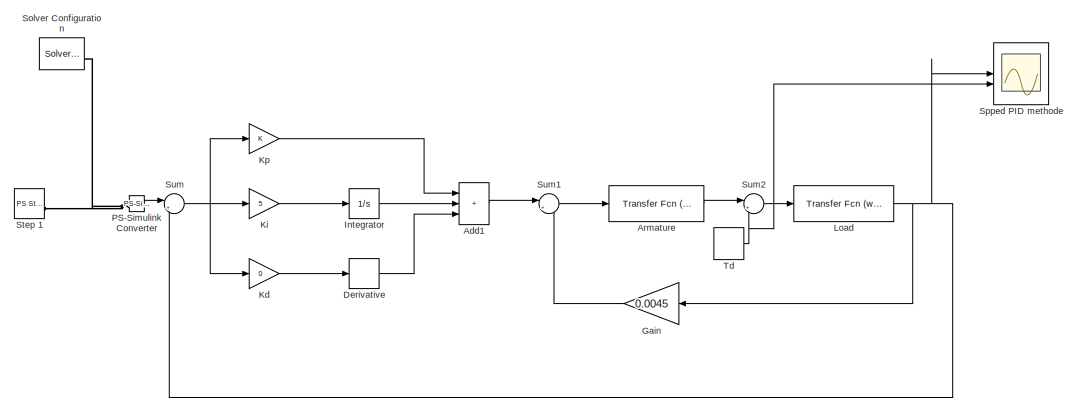
[diagram: root canvas - part 1/6, full width, top band]
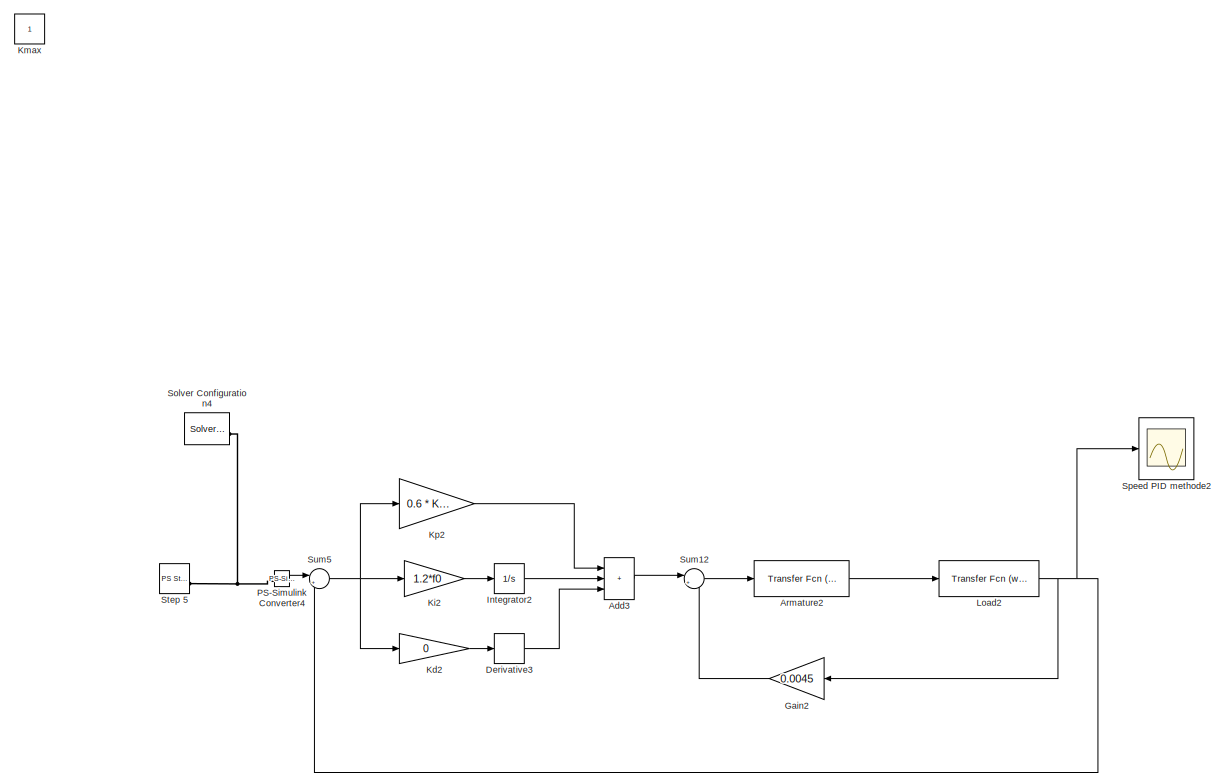
[diagram: root canvas - part 2/6, full width, top band]
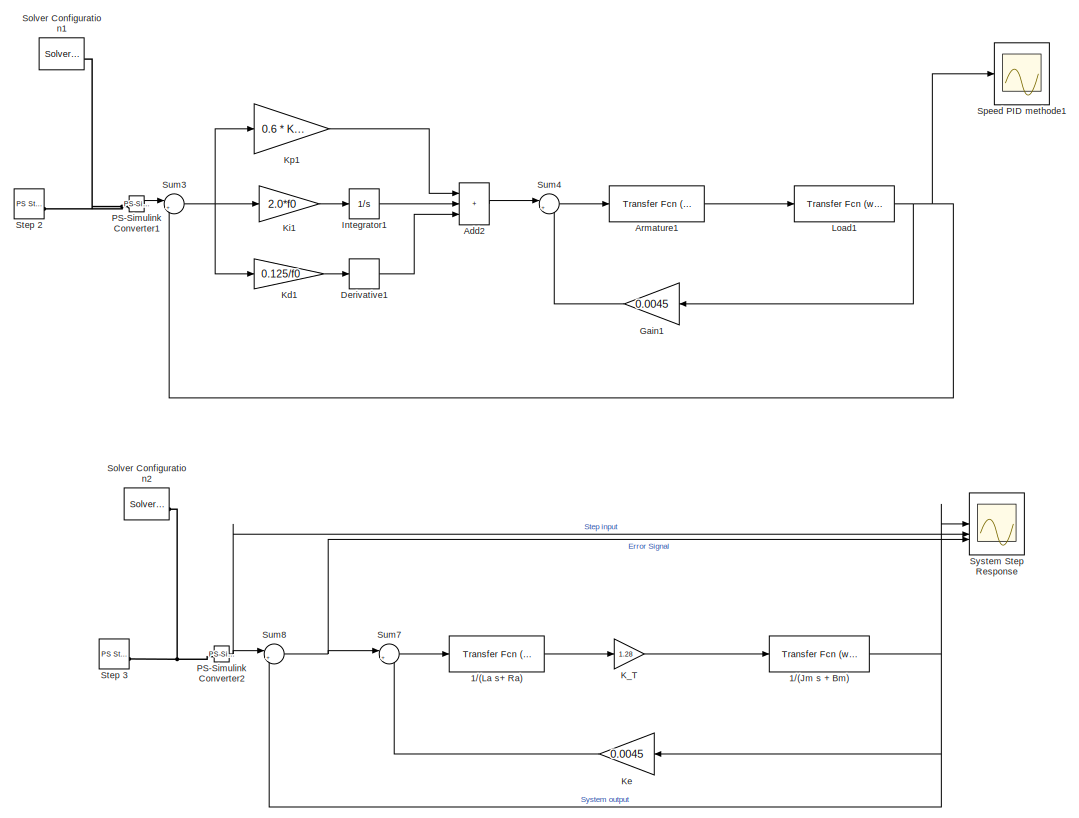
[diagram: root canvas - part 3/6, full width, middle band]
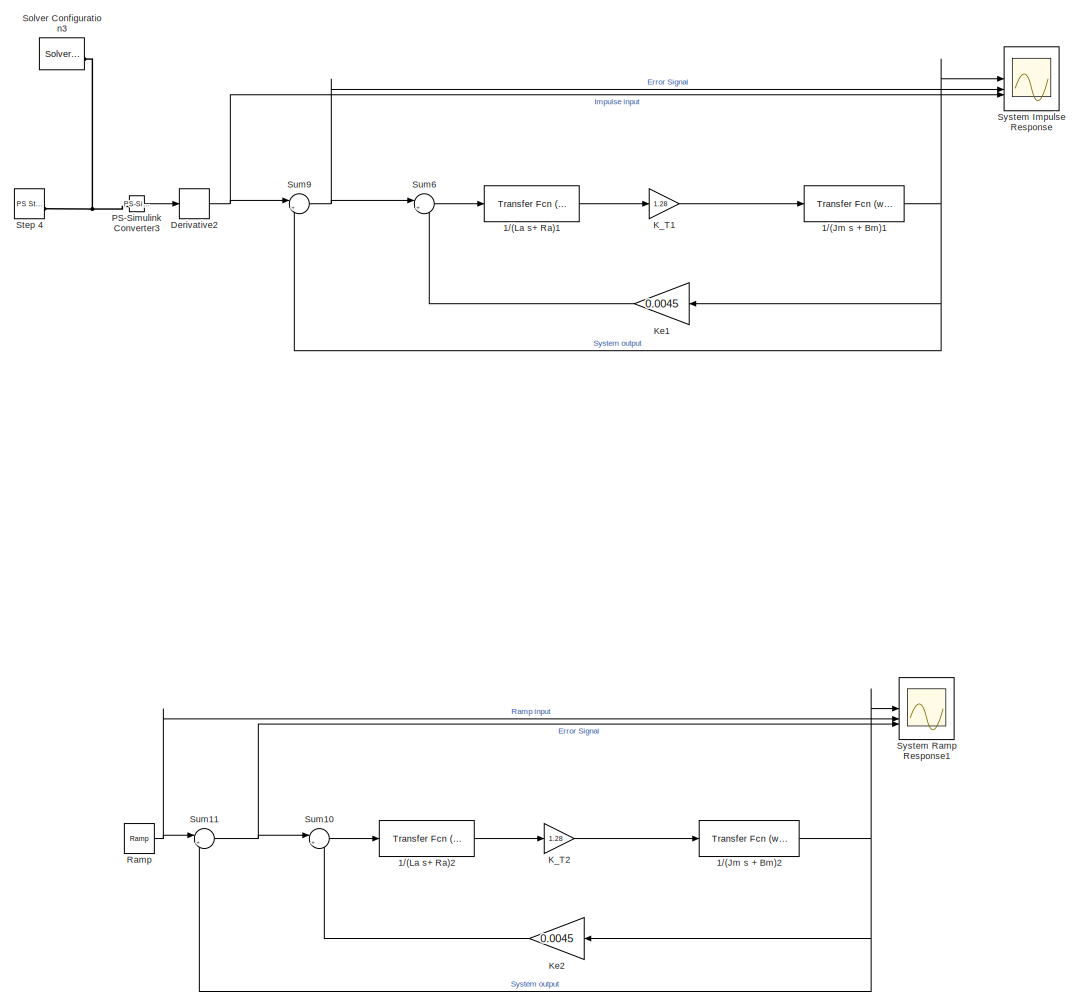
[diagram: root canvas - part 4/6, full width, middle band]
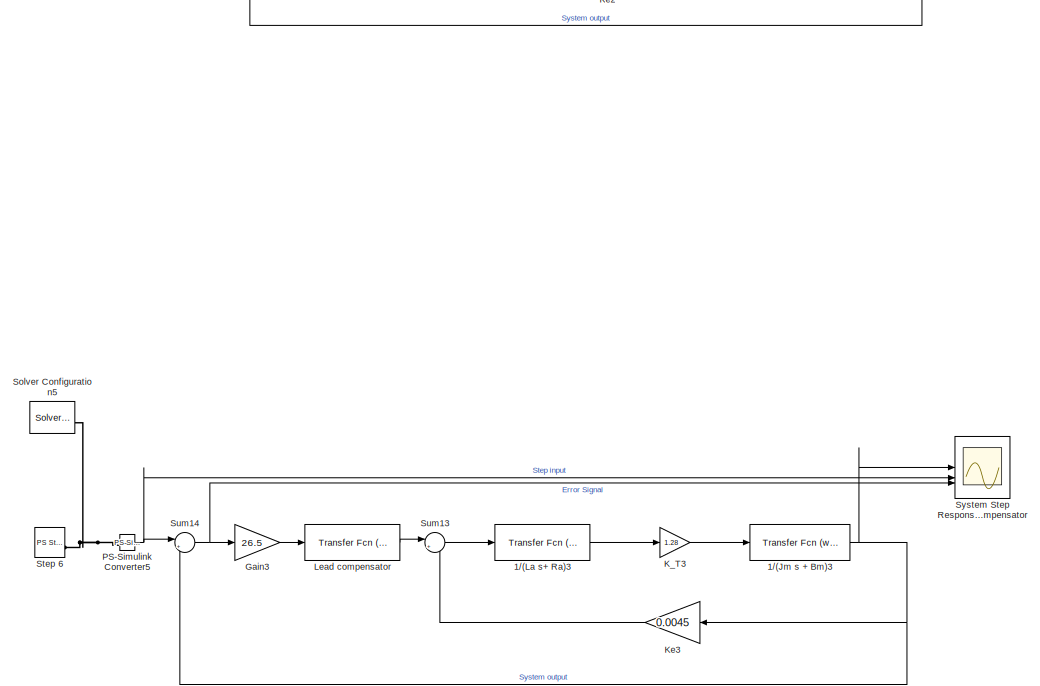
[diagram: root canvas - part 5/6, full width, bottom band]
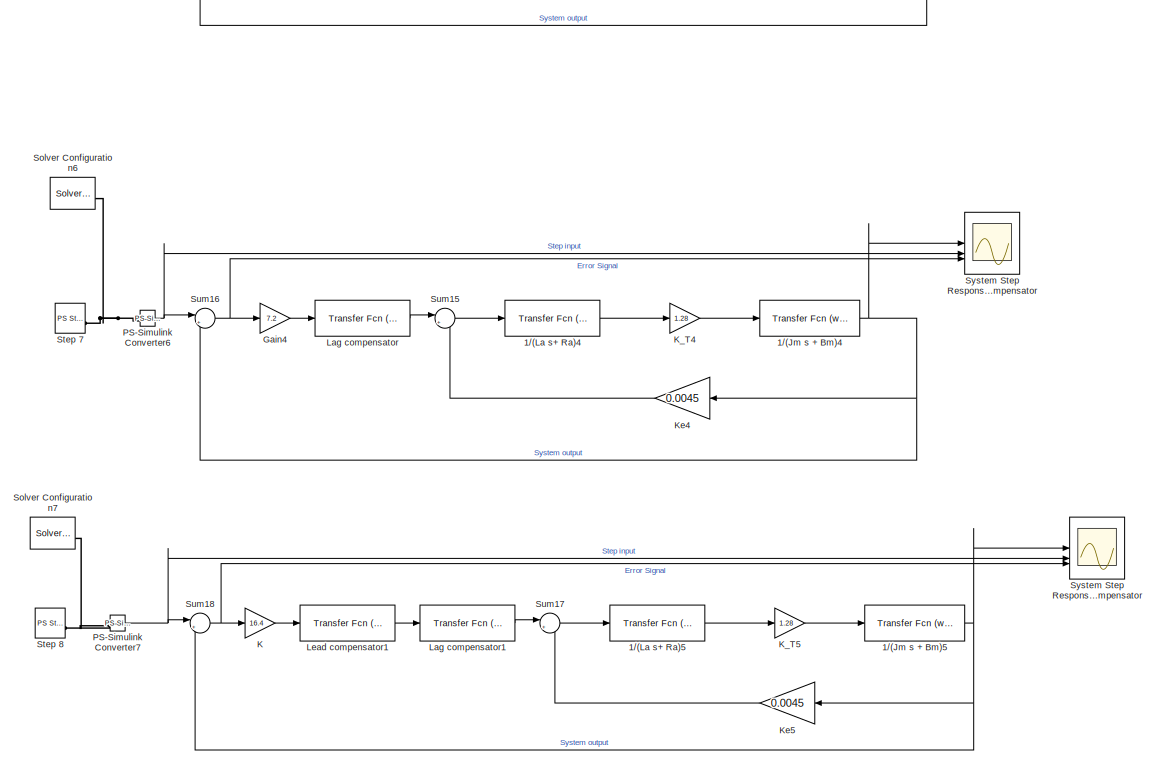
[diagram: root canvas - part 6/6, full width, bottom band]
MODEL slx_feaa740e583f
KIND model
CONFIG AbsTol = auto
CONFIG EnableMultiTasking = off
CONFIG FixedStep = auto
CONFIG MaxStep = auto
CONFIG MinStep = auto
CONFIG RelTol = 1e-3
CONFIG SampleTimeConstraint = Unconstrained
CONFIG SolverName = VariableStepAuto
CONFIG StartTime = 0.0
CONFIG StopTime = 10
WORKSPACE source: mxarray member
WORKSPACE Kmax = 100
BLOCK [Reference] 1//(Jm s + Bm)  REF=simulink_extras/Additional
Linear/Transfer Fcn
(with initial states)
  SourceBlock = simulink_extras/Additional\nLinear/Transfer Fcn\n(with initial states)
  SourceType = Transfer Function with Initial States
BLOCK [Reference] 1//(Jm s + Bm)1  REF=simulink_extras/Additional
Linear/Transfer Fcn
(with initial states)
  SourceBlock = simulink_extras/Additional\nLinear/Transfer Fcn\n(with initial states)
  SourceType = Transfer Function with Initial States
BLOCK [Reference] 1//(Jm s + Bm)2  REF=simulink_extras/Additional
Linear/Transfer Fcn
(with initial states)
  SourceBlock = simulink_extras/Additional\nLinear/Transfer Fcn\n(with initial states)
  SourceType = Transfer Function with Initial States
BLOCK [Reference] 1//(Jm s + Bm)3  REF=simulink_extras/Additional
Linear/Transfer Fcn
(with initial states)
  SourceBlock = simulink_extras/Additional\nLinear/Transfer Fcn\n(with initial states)
  SourceType = Transfer Function with Initial States
BLOCK [Reference] 1//(Jm s + Bm)4  REF=simulink_extras/Additional
Linear/Transfer Fcn
(with initial states)
  SourceBlock = simulink_extras/Additional\nLinear/Transfer Fcn\n(with initial states)
  SourceType = Transfer Function with Initial States
BLOCK [Reference] 1//(Jm s + Bm)5  REF=simulink_extras/Additional
Linear/Transfer Fcn
(with initial states)
  SourceBlock = simulink_extras/Additional\nLinear/Transfer Fcn\n(with initial states)
  SourceType = Transfer Function with Initial States
BLOCK [Reference] 1//(La s+ Ra)  REF=simulink_extras/Additional
Linear/Transfer Fcn
(with initial states)
  SourceBlock = simulink_extras/Additional\nLinear/Transfer Fcn\n(with initial states)
  SourceType = Transfer Function with Initial States
BLOCK [Reference] 1//(La s+ Ra)1  REF=simulink_extras/Additional
Linear/Transfer Fcn
(with initial states)
  SourceBlock = simulink_extras/Additional\nLinear/Transfer Fcn\n(with initial states)
  SourceType = Transfer Function with Initial States
BLOCK [Reference] 1//(La s+ Ra)2  REF=simulink_extras/Additional
Linear/Transfer Fcn
(with initial states)
  SourceBlock = simulink_extras/Additional\nLinear/Transfer Fcn\n(with initial states)
  SourceType = Transfer Function with Initial States
BLOCK [Reference] 1//(La s+ Ra)3  REF=simulink_extras/Additional
Linear/Transfer Fcn
(with initial states)
  SourceBlock = simulink_extras/Additional\nLinear/Transfer Fcn\n(with initial states)
  SourceType = Transfer Function with Initial States
BLOCK [Reference] 1//(La s+ Ra)4  REF=simulink_extras/Additional
Linear/Transfer Fcn
(with initial states)
  SourceBlock = simulink_extras/Additional\nLinear/Transfer Fcn\n(with initial states)
  SourceType = Transfer Function with Initial States
BLOCK [Reference] 1//(La s+ Ra)5  REF=simulink_extras/Additional
Linear/Transfer Fcn
(with initial states)
  SourceBlock = simulink_extras/Additional\nLinear/Transfer Fcn\n(with initial states)
  SourceType = Transfer Function with Initial States
BLOCK [Sum] Add1
  IconShape = rectangular
  Inputs = +++
BLOCK [Sum] Add2
  IconShape = rectangular
  Inputs = +++
BLOCK [Sum] Add3
  IconShape = rectangular
  Inputs = +++
BLOCK [Reference] Armature  REF=simulink_extras/Additional
Linear/Transfer Fcn
(with initial states)
  SourceBlock = simulink_extras/Additional\nLinear/Transfer Fcn\n(with initial states)
  SourceType = Transfer Function with Initial States
BLOCK [Reference] Armature1  REF=simulink_extras/Additional
Linear/Transfer Fcn
(with initial states)
  SourceBlock = simulink_extras/Additional\nLinear/Transfer Fcn\n(with initial states)
  SourceType = Transfer Function with Initial States
BLOCK [Reference] Armature2  REF=simulink_extras/Additional
Linear/Transfer Fcn
(with initial states)
  SourceBlock = simulink_extras/Additional\nLinear/Transfer Fcn\n(with initial states)
  SourceType = Transfer Function with Initial States
BLOCK [Derivative] Derivative
BLOCK [Derivative] Derivative1
BLOCK [Derivative] Derivative2
BLOCK [Derivative] Derivative3
BLOCK [Gain] Gain
  Gain = 0.0045
  NameLocation = top
BLOCK [Gain] Gain1
  Gain = 0.0045
  NameLocation = top
BLOCK [Gain] Gain2
  Gain = 0.0045
  NameLocation = top
BLOCK [Gain] Gain3
  Gain = 26.5
BLOCK [Gain] Gain4
  Gain = 7.2
BLOCK [Integrator] Integrator
BLOCK [Integrator] Integrator1
BLOCK [Integrator] Integrator2
BLOCK [Gain] K
  Gain = 16.4
BLOCK [Gain] K_T
  Gain = 1.28
BLOCK [Gain] K_T1
  Gain = 1.28
BLOCK [Gain] K_T2
  Gain = 1.28
BLOCK [Gain] K_T3
  Gain = 1.28
BLOCK [Gain] K_T4
  Gain = 1.28
BLOCK [Gain] K_T5
  Gain = 1.28
BLOCK [Gain] Kd
  Gain = 0
BLOCK [Gain] Kd1
  Gain = 0.125/f0
BLOCK [Gain] Kd2
  Gain = 0
BLOCK [Gain] Ke
  Gain = 0.0045
  NameLocation = top
BLOCK [Gain] Ke1
  Gain = 0.0045
  NameLocation = top
BLOCK [Gain] Ke2
  Gain = 0.0045
  NameLocation = top
BLOCK [Gain] Ke3
  Gain = 0.0045
  NameLocation = top
BLOCK [Gain] Ke4
  Gain = 0.0045
  NameLocation = top
BLOCK [Gain] Ke5
  Gain = 0.0045
  NameLocation = top
BLOCK [Gain] Ki
  Gain = 5
BLOCK [Gain] Ki1
  Gain = 2.0*f0
BLOCK [Gain] Ki2
  Gain = 1.2*f0
BLOCK [Constant] Kmax
BLOCK [Gain] Kp
BLOCK [Gain] Kp1
  Gain = 0.6 * Kmax
BLOCK [Gain] Kp2
  Gain = 0.6 * Kmax
BLOCK [Reference] Lag compensator  REF=simulink_extras/Additional
Linear/Transfer Fcn
(with initial states)
  SourceBlock = simulink_extras/Additional\nLinear/Transfer Fcn\n(with initial states)
  SourceType = Transfer Function with Initial States
BLOCK [Reference] Lag compensator1  REF=simulink_extras/Additional
Linear/Transfer Fcn
(with initial states)
  SourceBlock = simulink_extras/Additional\nLinear/Transfer Fcn\n(with initial states)
  SourceType = Transfer Function with Initial States
BLOCK [Reference] Lead compensator  REF=simulink_extras/Additional
Linear/Transfer Fcn
(with initial states)
  SourceBlock = simulink_extras/Additional\nLinear/Transfer Fcn\n(with initial states)
  SourceType = Transfer Function with Initial States
BLOCK [Reference] Lead compensator1  REF=simulink_extras/Additional
Linear/Transfer Fcn
(with initial states)
  SourceBlock = simulink_extras/Additional\nLinear/Transfer Fcn\n(with initial states)
  SourceType = Transfer Function with Initial States
BLOCK [Reference] Load  REF=simulink_extras/Additional
Linear/Transfer Fcn
(with initial states)
  SourceBlock = simulink_extras/Additional\nLinear/Transfer Fcn\n(with initial states)
  SourceType = Transfer Function with Initial States
BLOCK [Reference] Load1  REF=simulink_extras/Additional
Linear/Transfer Fcn
(with initial states)
  SourceBlock = simulink_extras/Additional\nLinear/Transfer Fcn\n(with initial states)
  SourceType = Transfer Function with Initial States
BLOCK [Reference] Load2  REF=simulink_extras/Additional
Linear/Transfer Fcn
(with initial states)
  SourceBlock = simulink_extras/Additional\nLinear/Transfer Fcn\n(with initial states)
  SourceType = Transfer Function with Initial States
BLOCK [Reference] PS-Simulink Converter  REF=nesl_utility/PS-Simulink
Converter
  SourceBlock = nesl_utility/PS-Simulink\nConverter
  SourceType = PS-Simulink\nConverter
BLOCK [Reference] PS-Simulink Converter1  REF=nesl_utility/PS-Simulink
Converter
  SourceBlock = nesl_utility/PS-Simulink\nConverter
  SourceType = PS-Simulink\nConverter
BLOCK [Reference] PS-Simulink Converter2  REF=nesl_utility/PS-Simulink
Converter
  SourceBlock = nesl_utility/PS-Simulink\nConverter
  SourceType = PS-Simulink\nConverter
BLOCK [Reference] PS-Simulink Converter3  REF=nesl_utility/PS-Simulink
Converter
  SourceBlock = nesl_utility/PS-Simulink\nConverter
  SourceType = PS-Simulink\nConverter
BLOCK [Reference] PS-Simulink Converter4  REF=nesl_utility/PS-Simulink
Converter
  SourceBlock = nesl_utility/PS-Simulink\nConverter
  SourceType = PS-Simulink\nConverter
BLOCK [Reference] PS-Simulink Converter5  REF=nesl_utility/PS-Simulink
Converter
  SourceBlock = nesl_utility/PS-Simulink\nConverter
  SourceType = PS-Simulink\nConverter
BLOCK [Reference] PS-Simulink Converter6  REF=nesl_utility/PS-Simulink
Converter
  SourceBlock = nesl_utility/PS-Simulink\nConverter
  SourceType = PS-Simulink\nConverter
BLOCK [Reference] PS-Simulink Converter7  REF=nesl_utility/PS-Simulink
Converter
  SourceBlock = nesl_utility/PS-Simulink\nConverter
  SourceType = PS-Simulink\nConverter
BLOCK [Reference] Ramp  REF=simulink/Sources/Ramp
  SourceBlock = simulink/Sources/Ramp
  SourceType = Ramp
BLOCK [Reference] Solver Configuration  REF=nesl_utility/Solver
Configuration
  SourceBlock = nesl_utility/Solver\nConfiguration
  SourceType = Solver\nConfiguration
BLOCK [Reference] Solver Configuration1  REF=nesl_utility/Solver
Configuration
  SourceBlock = nesl_utility/Solver\nConfiguration
  SourceType = Solver\nConfiguration
BLOCK [Reference] Solver Configuration2  REF=nesl_utility/Solver
Configuration
  SourceBlock = nesl_utility/Solver\nConfiguration
  SourceType = Solver\nConfiguration
BLOCK [Reference] Solver Configuration3  REF=nesl_utility/Solver
Configuration
  SourceBlock = nesl_utility/Solver\nConfiguration
  SourceType = Solver\nConfiguration
BLOCK [Reference] Solver Configuration4  REF=nesl_utility/Solver
Configuration
  SourceBlock = nesl_utility/Solver\nConfiguration
  SourceType = Solver\nConfiguration
BLOCK [Reference] Solver Configuration5  REF=nesl_utility/Solver
Configuration
  SourceBlock = nesl_utility/Solver\nConfiguration
  SourceType = Solver\nConfiguration
BLOCK [Reference] Solver Configuration6  REF=nesl_utility/Solver
Configuration
  SourceBlock = nesl_utility/Solver\nConfiguration
  SourceType = Solver\nConfiguration
BLOCK [Reference] Solver Configuration7  REF=nesl_utility/Solver
Configuration
  SourceBlock = nesl_utility/Solver\nConfiguration
  SourceType = Solver\nConfiguration
BLOCK [Scope] Speed PID methode1
  Floating = off
  NumInputPorts = 1
  ScopeSpecificationString = Simulink.scopes.TimeScopeBlockCfg('CurrentConfiguration', extmgr.ConfigurationSet(extmgr.Configuration('Core','General UI',true,'FigureColor',[1 1 1]),extmgr.Configuration('Core','Source UI',true),extmgr.Configuration('Sources','WiredSimulink',true,'DataLoggingVariableName','ScopeData1'),extmgr.Configuration('Visuals','Time Domain',true,'SerializedDisplays',{struct('MinYLimReal','-0.16218','MaxYLi...<+1527ch>
BLOCK [Scope] Speed PID methode2
  Floating = off
  NumInputPorts = 1
  ScopeSpecificationString = Simulink.scopes.TimeScopeBlockCfg('CurrentConfiguration', extmgr.ConfigurationSet(extmgr.Configuration('Core','General UI',true,'FigureColor',[1 1 1]),extmgr.Configuration('Core','Source UI',true),extmgr.Configuration('Sources','WiredSimulink',true,'DataLoggingVariableName','ScopeData4'),extmgr.Configuration('Visuals','Time Domain',true,'SerializedDisplays',{struct('MinYLimReal','0.63536','MaxYLim...<+1528ch>
BLOCK [Scope] Spped PID methode
  Floating = off
  NumInputPorts = 2
  ScopeSpecificationString = Simulink.scopes.TimeScopeBlockCfg('CurrentConfiguration', extmgr.ConfigurationSet(extmgr.Configuration('Core','General UI',true),extmgr.Configuration('Core','Source UI',true),extmgr.Configuration('Sources','WiredSimulink',true),extmgr.Configuration('Visuals','Time Domain',true,'SerializedDisplays',{struct('MinYLimReal','-0.16291','MaxYLimReal','1.46618','YLabelReal','','MinYLimMag','0.00000','MaxY...<+1447ch>
BLOCK [Reference] Step 1  REF=fl_lib/Physical Signals/Sources/PS Step
  SourceBlock = fl_lib/Physical Signals/Sources/PS Step
  SourceType = PS Step
BLOCK [Reference] Step 2  REF=fl_lib/Physical Signals/Sources/PS Step
  SourceBlock = fl_lib/Physical Signals/Sources/PS Step
  SourceType = PS Step
BLOCK [Reference] Step 3  REF=fl_lib/Physical Signals/Sources/PS Step
  SourceBlock = fl_lib/Physical Signals/Sources/PS Step
  SourceType = PS Step
BLOCK [Reference] Step 4  REF=fl_lib/Physical Signals/Sources/PS Step
  SourceBlock = fl_lib/Physical Signals/Sources/PS Step
  SourceType = PS Step
BLOCK [Reference] Step 5  REF=fl_lib/Physical Signals/Sources/PS Step
  SourceBlock = fl_lib/Physical Signals/Sources/PS Step
  SourceType = PS Step
BLOCK [Reference] Step 6  REF=fl_lib/Physical Signals/Sources/PS Step
  SourceBlock = fl_lib/Physical Signals/Sources/PS Step
  SourceType = PS Step
BLOCK [Reference] Step 7  REF=fl_lib/Physical Signals/Sources/PS Step
  SourceBlock = fl_lib/Physical Signals/Sources/PS Step
  SourceType = PS Step
BLOCK [Reference] Step 8  REF=fl_lib/Physical Signals/Sources/PS Step
  SourceBlock = fl_lib/Physical Signals/Sources/PS Step
  SourceType = PS Step
BLOCK [Sum] Sum
  Inputs = |+-
BLOCK [Sum] Sum1
  Inputs = |+-
BLOCK [Sum] Sum10
  Inputs = |+-
BLOCK [Sum] Sum11
  Inputs = |+-
BLOCK [Sum] Sum12
  Inputs = |+-
BLOCK [Sum] Sum13
  Inputs = |+-
BLOCK [Sum] Sum14
  Inputs = |+-
BLOCK [Sum] Sum15
  Inputs = |+-
BLOCK [Sum] Sum16
  Inputs = |+-
BLOCK [Sum] Sum17
  Inputs = |+-
BLOCK [Sum] Sum18
  Inputs = |+-
BLOCK [Sum] Sum2
  Inputs = |+-
BLOCK [Sum] Sum3
  Inputs = |+-
BLOCK [Sum] Sum4
  Inputs = |+-
BLOCK [Sum] Sum5
  Inputs = |+-
BLOCK [Sum] Sum6
  Inputs = |+-
BLOCK [Sum] Sum7
  Inputs = |+-
BLOCK [Sum] Sum8
  Inputs = |+-
BLOCK [Sum] Sum9
  Inputs = |+-
BLOCK [Scope] System Impulse Response
  Floating = off
  NumInputPorts = 3
  ScopeSpecificationString = Simulink.scopes.TimeScopeBlockCfg('CurrentConfiguration', extmgr.ConfigurationSet(extmgr.Configuration('Core','General UI',true,'FigureColor',[1 1 1]),extmgr.Configuration('Core','Source UI',true),extmgr.Configuration('Sources','WiredSimulink',true,'DataLoggingVariableName','ScopeData2'),extmgr.Configuration('Visuals','Time Domain',true,'SerializedDisplays',{struct('MinYLimReal','-0.125','MaxYLimR...<+1722ch>
BLOCK [Scope] System Ramp Response1
  Floating = off
  NumInputPorts = 3
  ScopeSpecificationString = Simulink.scopes.TimeScopeBlockCfg('CurrentConfiguration', extmgr.ConfigurationSet(extmgr.Configuration('Core','General UI',true,'FigureColor',[1 1 1]),extmgr.Configuration('Core','Source UI',true),extmgr.Configuration('Sources','WiredSimulink',true,'DataLoggingVariableName','ScopeData3'),extmgr.Configuration('Visuals','Time Domain',true,'SerializedDisplays',{struct('MinYLimReal','-1.125','MaxYLimR...<+2102ch>
BLOCK [Scope] System Step Response
  Floating = off
  NumInputPorts = 3
  ScopeSpecificationString = Simulink.scopes.TimeScopeBlockCfg('CurrentConfiguration', extmgr.ConfigurationSet(extmgr.Configuration('Core','General UI',true,'FigureColor',[1 1 1]),extmgr.Configuration('Core','Source UI',true),extmgr.Configuration('Sources','WiredSimulink',true,'DataLoggingVariableName','ScopeData1'),extmgr.Configuration('Visuals','Time Domain',true,'SerializedDisplays',{struct('MinYLimReal','-0.125','MaxYLimR...<+2098ch>
BLOCK [Scope] System Step Response with lag compensator
  Floating = off
  NumInputPorts = 3
  ScopeSpecificationString = Simulink.scopes.TimeScopeBlockCfg('CurrentConfiguration', extmgr.ConfigurationSet(extmgr.Configuration('Core','General UI',true,'FigureColor',[1 1 1]),extmgr.Configuration('Core','Source UI',true),extmgr.Configuration('Sources','WiredSimulink',true,'DataLoggingVariableName','ScopeData2'),extmgr.Configuration('Visuals','Time Domain',true,'SerializedDisplays',{struct('MinYLimReal','0.99496','MaxYLim...<+2116ch>
BLOCK [Scope] System Step Response with lead compensator
  Floating = off
  NumInputPorts = 3
  ScopeSpecificationString = Simulink.scopes.TimeScopeBlockCfg('CurrentConfiguration', extmgr.ConfigurationSet(extmgr.Configuration('Core','General UI',true,'FigureColor',[1 1 1]),extmgr.Configuration('Core','Source UI',true),extmgr.Configuration('Sources','WiredSimulink',true,'DataLoggingVariableName','ScopeData1'),extmgr.Configuration('Visuals','Time Domain',true,'SerializedDisplays',{struct('MinYLimReal','-0.13511','MaxYLi...<+2118ch>
BLOCK [Scope] System Step Response with lead lag compensator
  Floating = off
  NumInputPorts = 3
  ScopeSpecificationString = Simulink.scopes.TimeScopeBlockCfg('CurrentConfiguration', extmgr.ConfigurationSet(extmgr.Configuration('Core','General UI',true,'FigureColor',[1 1 1]),extmgr.Configuration('Core','Source UI',true),extmgr.Configuration('Sources','WiredSimulink',true,'DataLoggingVariableName','ScopeData3'),extmgr.Configuration('Visuals','Time Domain',true,'SerializedDisplays',{struct('MinYLimReal','0.99512','MaxYLim...<+2116ch>
BLOCK [DiscretePulseGenerator] Td
  Amplitude = 0.03
  Period = 10
  PhaseDelay = 1
  PulseType = Time based
  PulseWidth = 10
NET 1//(Jm s + Bm)1:1 -> Ke1:1, Sum9:2, System Impulse Response:1
NET 1//(Jm s + Bm)2:1 -> Ke2:1, Sum11:2, System Ramp Response1:1
NET 1//(Jm s + Bm)3:1 -> Ke3:1, Sum14:2, System Step Response with lead compensator:1
NET 1//(Jm s + Bm)4:1 -> Ke4:1, Sum16:2, System Step Response with lag compensator:1
NET 1//(Jm s + Bm)5:1 -> Ke5:1, Sum18:2, System Step Response with lead lag compensator:1
NET 1//(Jm s + Bm):1 -> Ke:1, Sum8:2, System Step Response:1
LINE 1//(La s+ Ra)1:1 -> K_T1:1
LINE 1//(La s+ Ra)2:1 -> K_T2:1
LINE 1//(La s+ Ra)3:1 -> K_T3:1
LINE 1//(La s+ Ra)4:1 -> K_T4:1
LINE 1//(La s+ Ra)5:1 -> K_T5:1
LINE 1//(La s+ Ra):1 -> K_T:1
LINE Add1:1 -> Sum1:1
LINE Add2:1 -> Sum4:1
LINE Add3:1 -> Sum12:1
LINE Armature1:1 -> Load1:1
LINE Armature2:1 -> Load2:1
LINE Armature:1 -> Sum2:1
LINE Derivative1:1 -> Add2:3
NET Derivative2:1 -> Sum9:1, System Impulse Response:3
LINE Derivative3:1 -> Add3:3
LINE Derivative:1 -> Add1:3
LINE Gain1:1 -> Sum4:2
LINE Gain2:1 -> Sum12:2
LINE Gain3:1 -> Lead compensator:1
LINE Gain4:1 -> Lag compensator:1
LINE Gain:1 -> Sum1:2
LINE Integrator1:1 -> Add2:2
LINE Integrator2:1 -> Add3:2
LINE Integrator:1 -> Add1:2
LINE K:1 -> Lead compensator1:1
LINE K_T1:1 -> 1//(Jm s + Bm)1:1
LINE K_T2:1 -> 1//(Jm s + Bm)2:1
LINE K_T3:1 -> 1//(Jm s + Bm)3:1
LINE K_T4:1 -> 1//(Jm s + Bm)4:1
LINE K_T5:1 -> 1//(Jm s + Bm)5:1
LINE K_T:1 -> 1//(Jm s + Bm):1
LINE Kd1:1 -> Derivative1:1
LINE Kd2:1 -> Derivative3:1
LINE Kd:1 -> Derivative:1
LINE Ke1:1 -> Sum6:2
LINE Ke2:1 -> Sum10:2
LINE Ke3:1 -> Sum13:2
LINE Ke4:1 -> Sum15:2
LINE Ke5:1 -> Sum17:2
LINE Ke:1 -> Sum7:2
LINE Ki1:1 -> Integrator1:1
LINE Ki2:1 -> Integrator2:1
LINE Ki:1 -> Integrator:1
LINE Kp1:1 -> Add2:1
LINE Kp2:1 -> Add3:1
LINE Kp:1 -> Add1:1
LINE Lag compensator1:1 -> Sum17:1
LINE Lag compensator:1 -> Sum15:1
LINE Lead compensator1:1 -> Lag compensator1:1
LINE Lead compensator:1 -> Sum13:1
NET Load1:1 -> Gain1:1, Speed PID methode1:1, Sum3:2
NET Load2:1 -> Gain2:1, Speed PID methode2:1, Sum5:2
NET Load:1 -> Gain:1, Spped PID methode:1, Sum:2
LINE PS-Simulink Converter1:1 -> Sum3:1
NET PS-Simulink Converter2:1 -> Sum8:1, System Step Response:2
LINE PS-Simulink Converter3:1 -> Derivative2:1
LINE PS-Simulink Converter4:1 -> Sum5:1
NET PS-Simulink Converter5:1 -> Sum14:1, System Step Response with lead compensator:2
NET PS-Simulink Converter6:1 -> Sum16:1, System Step Response with lag compensator:2
NET PS-Simulink Converter7:1 -> Sum18:1, System Step Response with lead lag compensator:2
LINE PS-Simulink Converter:1 -> Sum:1
NET Ramp:1 -> Sum11:1, System Ramp Response1:2
LINE Sum10:1 -> 1//(La s+ Ra)2:1
NET Sum11:1 -> Sum10:1, System Ramp Response1:3
LINE Sum12:1 -> Armature2:1
LINE Sum13:1 -> 1//(La s+ Ra)3:1
NET Sum14:1 -> Gain3:1, System Step Response with lead compensator:3
LINE Sum15:1 -> 1//(La s+ Ra)4:1
NET Sum16:1 -> Gain4:1, System Step Response with lag compensator:3
LINE Sum17:1 -> 1//(La s+ Ra)5:1
NET Sum18:1 -> K:1, System Step Response with lead lag compensator:3
LINE Sum1:1 -> Armature:1
LINE Sum2:1 -> Load:1
NET Sum3:1 -> Kd1:1, Ki1:1, Kp1:1
LINE Sum4:1 -> Armature1:1
NET Sum5:1 -> Kd2:1, Ki2:1, Kp2:1
LINE Sum6:1 -> 1//(La s+ Ra)1:1
LINE Sum7:1 -> 1//(La s+ Ra):1
NET Sum8:1 -> Sum7:1, System Step Response:3
NET Sum9:1 -> Sum6:1, System Impulse Response:2
NET Sum:1 -> Kd:1, Ki:1, Kp:1
NET Td:1 -> Spped PID methode:2, Sum2:2
PNET net1: PS-Simulink Converter1:LConn1 -- Solver Configuration1:RConn1 -- Step 2:RConn1
PNET net2: PS-Simulink Converter2:LConn1 -- Solver Configuration2:RConn1 -- Step 3:RConn1
PNET net3: PS-Simulink Converter3:LConn1 -- Solver Configuration3:RConn1 -- Step 4:RConn1
PNET net4: PS-Simulink Converter4:LConn1 -- Solver Configuration4:RConn1 -- Step 5:RConn1
PNET net5: PS-Simulink Converter5:LConn1 -- Solver Configuration5:RConn1 -- Step 6:RConn1
PNET net6: PS-Simulink Converter6:LConn1 -- Solver Configuration6:RConn1 -- Step 7:RConn1
PNET net7: PS-Simulink Converter7:LConn1 -- Solver Configuration7:RConn1 -- Step 8:RConn1
PNET net8: PS-Simulink Converter:LConn1 -- Solver Configuration:RConn1 -- Step 1:RConn1
note: NET lines group one-source signal fan-out (src -> all destinations, sorted); 1:1 wires keep LINE; PNET lines group multi-terminal physical nets as a canonical sorted terminal list (undirected conserving connections); 2-terminal nets keep the pairwise PLINE form
